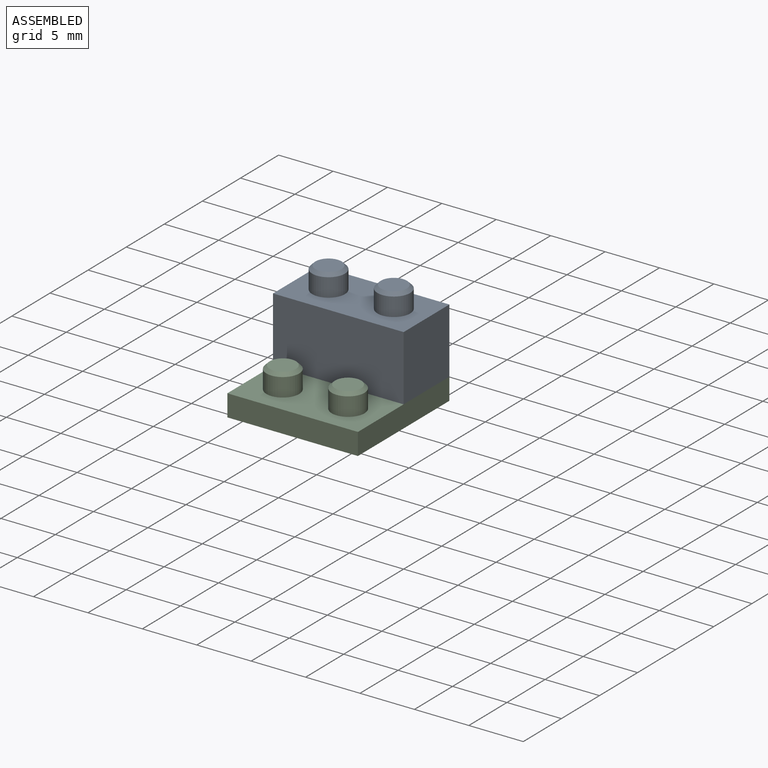
[diagram: assembled view]
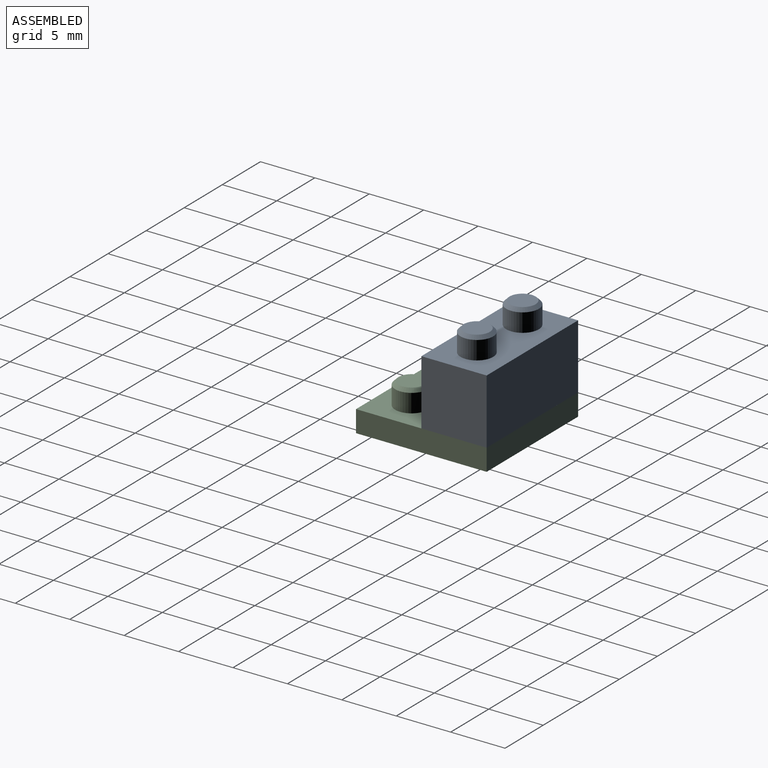
[diagram: assembled view, second angle]
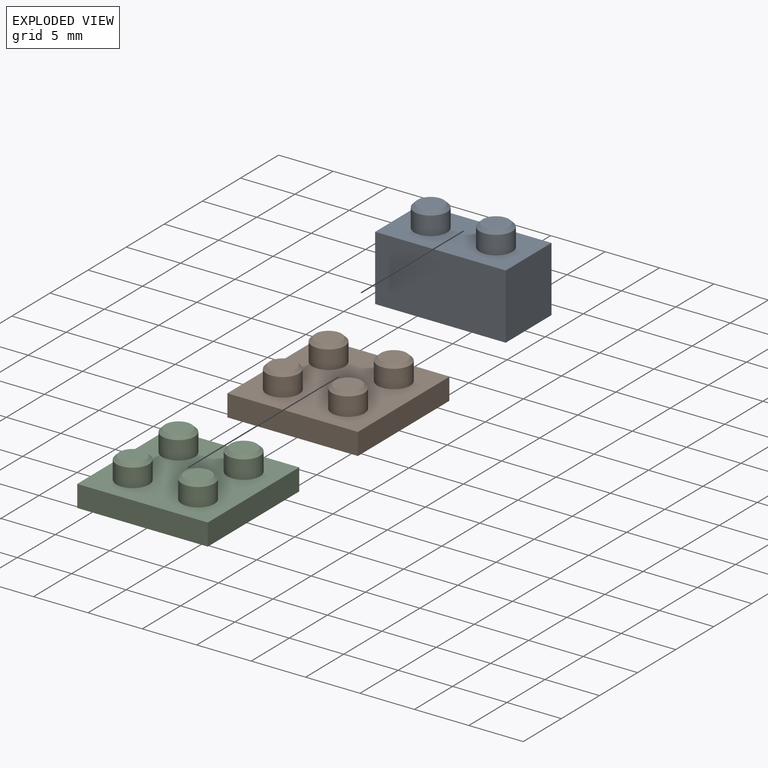
[diagram: exploded view]
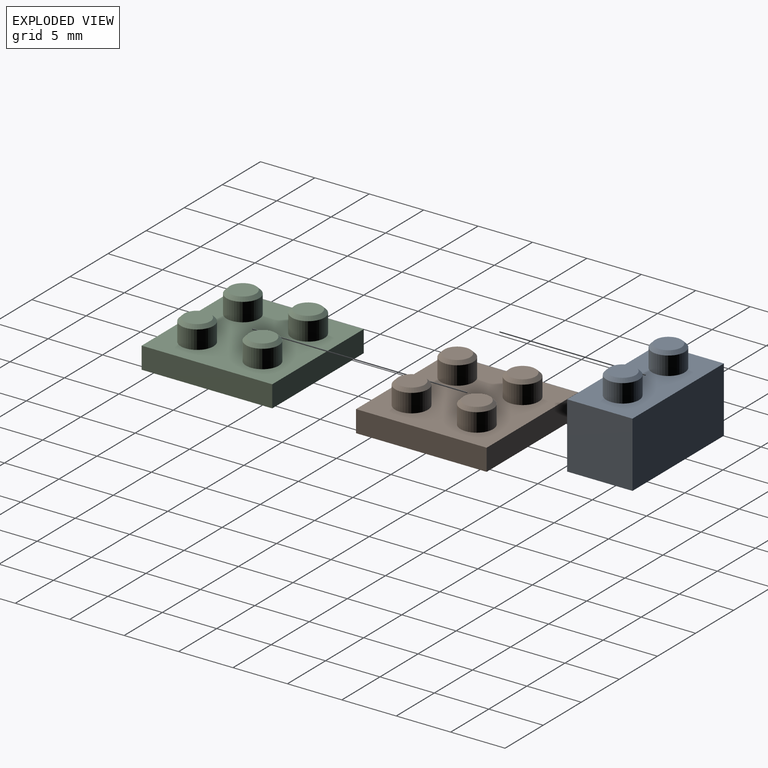
[diagram: exploded view, second angle]
ASSEMBLY  parts=3 mates=3
PART A: 21 faces, bbox 12x6x8 mm
  f0: plane 6x6mm, normal (-1,0,0), area 36mm2, adj f1,f3,f4,f5
  f1: plane 12x6mm, normal (0,-1,0), area 72mm2, adj f0,f2,f4,f5
  f2: plane 6x6mm, normal (1,0,0), area 36mm2, adj f1,f3,f4,f5
  f3: plane 12x6mm, normal (0,1,0), area 72mm2, adj f0,f2,f4,f5
  f4: plane 12x6mm, normal (0,0,-1), area 32mm2, adj f0,f1,f2,f3,f14,f15,f16,f17
  f5: plane 12x6mm, normal (0,0,1), area 57.9mm2, adj f0,f1,f2,f3,f6,f8
  f6: cylinder r=1.5mm len=3mm, axis (0,0,-1), area 16mm2, adj f5,f10
  f7: plane 2.4x2.4mm, normal (0,0,1), area 4.5mm2, adj f10
  f8: cylinder r=1.5mm len=3mm, axis (0,0,-1), area 16mm2, adj f5,f11
  f9: plane 2.4x2.4mm, normal (0,0,1), area 4.5mm2, adj f11
  f10: cone r=1.2mm half-angle=45deg, axis (0,0,-1), area 3.6mm2, adj f6,f7
  f11: cone r=1.5mm half-angle=45deg, axis (0,0,-1), area 3.6mm2, adj f8,f9
  f12: plane 1x1mm, normal (0,0,-1), area 0.8mm2, adj f20
  f13: plane 1x1mm, normal (0,0,-1), area 0.8mm2, adj f19
  f14: plane 5x4mm, normal (1,0,0), area 20mm2, adj f4,f15,f17,f18
  f15: plane 10x5mm, normal (0,1,0), area 50mm2, adj f4,f14,f16,f18
  f16: plane 5x4mm, normal (-1,0,0), area 20mm2, adj f4,f15,f17,f18
  f17: plane 10x5mm, normal (0,-1,0), area 50mm2, adj f4,f14,f16,f18
  f18: plane 10x4mm, normal (0,0,-1), area 38.4mm2, adj f14,f15,f16,f17,f19,f20
  f19: cylinder r=0.5mm len=2mm, axis (0,0,-1), area 6.3mm2, adj f13,f18
  f20: cylinder r=0.5mm len=2mm, axis (0,0,-1), area 6.3mm2, adj f12,f18
PART B: 31 faces, bbox 12x12x4 mm
  f0: plane 12x2mm, normal (-1,0,0), area 24mm2, adj f1,f3,f4,f5
  f1: plane 12x2mm, normal (0,-1,0), area 24mm2, adj f0,f2,f4,f5
  f2: plane 12x2mm, normal (1,0,0), area 24mm2, adj f1,f3,f4,f5
  f3: plane 12x2mm, normal (0,1,0), area 24mm2, adj f0,f2,f4,f5
  f4: plane 12x12mm, normal (0,0,-1), area 44mm2, adj f0,f1,f2,f3,f22,f23,f24,f25
  f5: plane 12x12mm, normal (0,0,1), area 115.7mm2, adj f0,f1,f2,f3,f6,f8,f10,f12
  f6: cylinder r=1.5mm len=3mm, axis (0,0,-1), area 16mm2, adj f5,f16
  f7: plane 2.4x2.4mm, normal (0,0,1), area 4.5mm2, adj f16
  f8: cylinder r=1.5mm len=3mm, axis (0,0,-1), area 16mm2, adj f5,f17
  f9: plane 2.4x2.4mm, normal (0,0,1), area 4.5mm2, adj f17
  f10: cylinder r=1.5mm len=3mm, axis (0,0,-1), area 16mm2, adj f5,f15
  f11: plane 2.4x2.4mm, normal (0,0,1), area 4.5mm2, adj f15
  f12: cylinder r=1.5mm len=3mm, axis (0,0,-1), area 16mm2, adj f5,f14
  f13: plane 2.4x2.4mm, normal (0,0,1), area 4.5mm2, adj f14
  f14: cone r=1.5mm half-angle=45deg, axis (0,0,-1), area 3.6mm2, adj f12,f13
  f15: cone r=1.2mm half-angle=45deg, axis (0,0,-1), area 3.6mm2, adj f10,f11
  f16: cone r=1.2mm half-angle=45deg, axis (0,0,-1), area 3.6mm2, adj f6,f7
  f17: cone r=1.5mm half-angle=45deg, axis (0,0,-1), area 3.6mm2, adj f8,f9
  f18: plane 1x1mm, normal (0,0,-1), area 0.8mm2, adj f30
  f19: plane 1x1mm, normal (0,0,-1), area 0.8mm2, adj f29
  f20: plane 1x1mm, normal (0,0,-1), area 0.8mm2, adj f28
  f21: plane 1x1mm, normal (0,0,-1), area 0.8mm2, adj f27
  f22: plane 10x1mm, normal (1,0,0), area 10mm2, adj f4,f23,f25,f26
  f23: plane 10x1mm, normal (0,1,0), area 10mm2, adj f4,f22,f24,f26
  f24: plane 10x1mm, normal (-1,0,0), area 10mm2, adj f4,f23,f25,f26
  f25: plane 10x1mm, normal (0,-1,0), area 10mm2, adj f4,f22,f24,f26
  f26: plane 10x10mm, normal (0,0,-1), area 96.9mm2, adj f22,f23,f24,f25,f27,f28,f29,f30
  f27: cylinder r=0.5mm len=2mm, axis (0,0,-1), area 6.3mm2, adj f21,f26
  f28: cylinder r=0.5mm len=2mm, axis (0,0,-1), area 6.3mm2, adj f20,f26
  f29: cylinder r=0.5mm len=2mm, axis (0,0,-1), area 6.3mm2, adj f19,f26
  f30: cylinder r=0.5mm len=2mm, axis (0,0,-1), area 6.3mm2, adj f18,f26
PART C: same geometry as B
PLACE A t=(0,3,6)mm
PLACE B at identity
PLACE C at identity
MATE planar A.f3 <-> C.f3  axis (0,1,0) through (0,6,3)mm
MATE planar A.f4 <-> C.f5  axis (0,0,-1) through (5,1,0)mm
MATE planar A.f2 <-> C.f2  axis (1,0,0) through (6,3,3)mm
